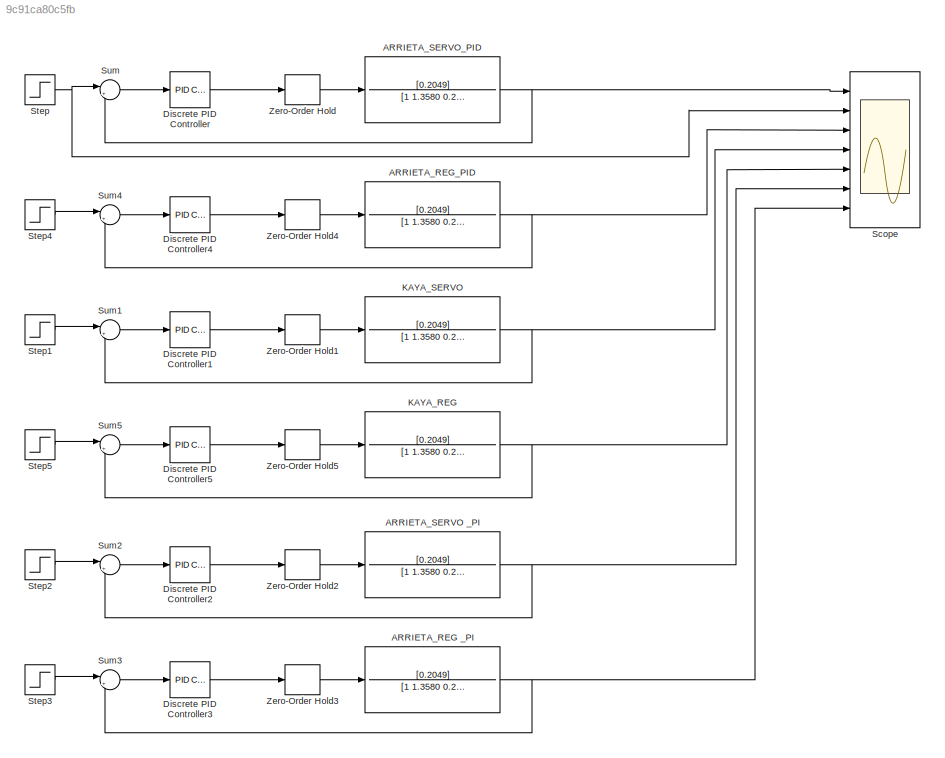
MODEL slx_9c91ca80c5fb
KIND model
CONFIG AbsTol = auto
CONFIG EnableMultiTasking = off
CONFIG FixedStep = auto
CONFIG MaxStep = auto
CONFIG MinStep = auto
CONFIG RelTol = 1e-3
CONFIG SampleTimeConstraint = Unconstrained
CONFIG Solver = ode3
CONFIG SolverName = ode3
CONFIG StartTime = 0.0
CONFIG StopTime = 40.0
BLOCK [TransferFcn] ARRIETA_REG _PI
  Denominator = [1 1.3580 0.2049]
  Numerator = [0.2049]
BLOCK [TransferFcn] ARRIETA_REG_PID
  Denominator = [1 1.3580 0.2049]
  Numerator = [0.2049]
BLOCK [TransferFcn] ARRIETA_SERVO _PI
  Denominator = [1 1.3580 0.2049]
  Numerator = [0.2049]
BLOCK [TransferFcn] ARRIETA_SERVO_PID
  Denominator = [1 1.3580 0.2049]
  Numerator = [0.2049]
BLOCK [Reference] Discrete PID Controller  REF=simulink/Continuous/PID Controller
  Ports = [1, 1]
  SourceBlock = simulink/Continuous/PID Controller
  SourceProductBaseCode = SL
  SourceProductName = Simulink
  SourceType = PID 1dof
BLOCK [Reference] Discrete PID Controller1  REF=simulink/Continuous/PID Controller
  Ports = [1, 1]
  SourceBlock = simulink/Continuous/PID Controller
  SourceProductBaseCode = SL
  SourceProductName = Simulink
  SourceType = PID 1dof
BLOCK [Reference] Discrete PID Controller2  REF=simulink/Continuous/PID Controller
  Ports = [1, 1]
  SourceBlock = simulink/Continuous/PID Controller
  SourceProductBaseCode = SL
  SourceProductName = Simulink
  SourceType = PID 1dof
BLOCK [Reference] Discrete PID Controller3  REF=simulink/Continuous/PID Controller
  Ports = [1, 1]
  SourceBlock = simulink/Continuous/PID Controller
  SourceProductBaseCode = SL
  SourceProductName = Simulink
  SourceType = PID 1dof
BLOCK [Reference] Discrete PID Controller4  REF=simulink/Continuous/PID Controller
  Ports = [1, 1]
  SourceBlock = simulink/Continuous/PID Controller
  SourceProductBaseCode = SL
  SourceProductName = Simulink
  SourceType = PID 1dof
BLOCK [Reference] Discrete PID Controller5  REF=simulink/Continuous/PID Controller
  Ports = [1, 1]
  SourceBlock = simulink/Continuous/PID Controller
  SourceProductBaseCode = SL
  SourceProductName = Simulink
  SourceType = PID 1dof
BLOCK [TransferFcn] KAYA_REG
  Denominator = [1 1.3580 0.2049]
  Numerator = [0.2049]
BLOCK [TransferFcn] KAYA_SERVO
  Denominator = [1 1.3580 0.2049]
  Numerator = [0.2049]
BLOCK [Scope] Scope
  NumInputPorts = 7
  Ports = [7]
  ScopeSpecificationString = Simulink.scopes.TimeScopeBlockCfg('CurrentConfiguration', extmgr.ConfigurationSet(extmgr.Configuration('Core','General UI',true),extmgr.Configuration('Core','Source UI',true),extmgr.Configuration('Sources','WiredSimulink',true),extmgr.Configuration('Visuals','Time Domain',true,'SerializedDisplays',{struct('MinYLimReal','-0.21361','MaxYLimReal','1.92245','YLabelReal','','MinYLimMag','0.00000','MaxY...<+1454ch>
BLOCK [Step] Step
  SampleTime = 0
BLOCK [Step] Step1
  SampleTime = 0
BLOCK [Step] Step2
  SampleTime = 0
BLOCK [Step] Step3
  SampleTime = 0
BLOCK [Step] Step4
  SampleTime = 0
BLOCK [Step] Step5
  SampleTime = 0
BLOCK [Sum] Sum
  IconShape = round
  InputSameDT = off
  Inputs = |+-
  OutDataTypeStr = Inherit: Inherit via internal rule
  Ports = [2, 1]
  SaturateOnIntegerOverflow = off
BLOCK [Sum] Sum1
  IconShape = round
  InputSameDT = off
  Inputs = |+-
  OutDataTypeStr = Inherit: Inherit via internal rule
  Ports = [2, 1]
  SaturateOnIntegerOverflow = off
BLOCK [Sum] Sum2
  IconShape = round
  InputSameDT = off
  Inputs = |+-
  OutDataTypeStr = Inherit: Inherit via internal rule
  Ports = [2, 1]
  SaturateOnIntegerOverflow = off
BLOCK [Sum] Sum3
  IconShape = round
  InputSameDT = off
  Inputs = |+-
  OutDataTypeStr = Inherit: Inherit via internal rule
  Ports = [2, 1]
  SaturateOnIntegerOverflow = off
BLOCK [Sum] Sum4
  IconShape = round
  InputSameDT = off
  Inputs = |+-
  OutDataTypeStr = Inherit: Inherit via internal rule
  Ports = [2, 1]
  SaturateOnIntegerOverflow = off
BLOCK [Sum] Sum5
  IconShape = round
  InputSameDT = off
  Inputs = |+-
  OutDataTypeStr = Inherit: Inherit via internal rule
  Ports = [2, 1]
  SaturateOnIntegerOverflow = off
BLOCK [ZeroOrderHold] Zero-Order Hold
  SampleTime = 0.1
BLOCK [ZeroOrderHold] Zero-Order Hold1
  SampleTime = 0.1
BLOCK [ZeroOrderHold] Zero-Order Hold2
  SampleTime = 0.1
BLOCK [ZeroOrderHold] Zero-Order Hold3
  SampleTime = 0.1
BLOCK [ZeroOrderHold] Zero-Order Hold4
  SampleTime = 0.1
BLOCK [ZeroOrderHold] Zero-Order Hold5
  SampleTime = 0.1
NET ARRIETA_REG _PI:1 -> Scope:7, Sum3:2
NET ARRIETA_REG_PID:1 -> Scope:3, Sum4:2
NET ARRIETA_SERVO _PI:1 -> Scope:6, Sum2:2
NET ARRIETA_SERVO_PID:1 -> Scope:1, Sum:2
LINE Discrete PID Controller1:1 -> Zero-Order Hold1:1
LINE Discrete PID Controller2:1 -> Zero-Order Hold2:1
LINE Discrete PID Controller3:1 -> Zero-Order Hold3:1
LINE Discrete PID Controller4:1 -> Zero-Order Hold4:1
LINE Discrete PID Controller5:1 -> Zero-Order Hold5:1
LINE Discrete PID Controller:1 -> Zero-Order Hold:1
NET KAYA_REG:1 -> Scope:5, Sum5:2
NET KAYA_SERVO:1 -> Scope:4, Sum1:2
LINE Step1:1 -> Sum1:1
LINE Step2:1 -> Sum2:1
LINE Step3:1 -> Sum3:1
LINE Step4:1 -> Sum4:1
LINE Step5:1 -> Sum5:1
NET Step:1 -> Scope:2, Sum:1
LINE Sum1:1 -> Discrete PID Controller1:1
LINE Sum2:1 -> Discrete PID Controller2:1
LINE Sum3:1 -> Discrete PID Controller3:1
LINE Sum4:1 -> Discrete PID Controller4:1
LINE Sum5:1 -> Discrete PID Controller5:1
LINE Sum:1 -> Discrete PID Controller:1
LINE Zero-Order Hold1:1 -> KAYA_SERVO:1
LINE Zero-Order Hold2:1 -> ARRIETA_SERVO _PI:1
LINE Zero-Order Hold3:1 -> ARRIETA_REG _PI:1
LINE Zero-Order Hold4:1 -> ARRIETA_REG_PID:1
LINE Zero-Order Hold5:1 -> KAYA_REG:1
LINE Zero-Order Hold:1 -> ARRIETA_SERVO_PID:1
note: NET lines group one-source signal fan-out (src -> all destinations, sorted); 1:1 wires keep LINE
